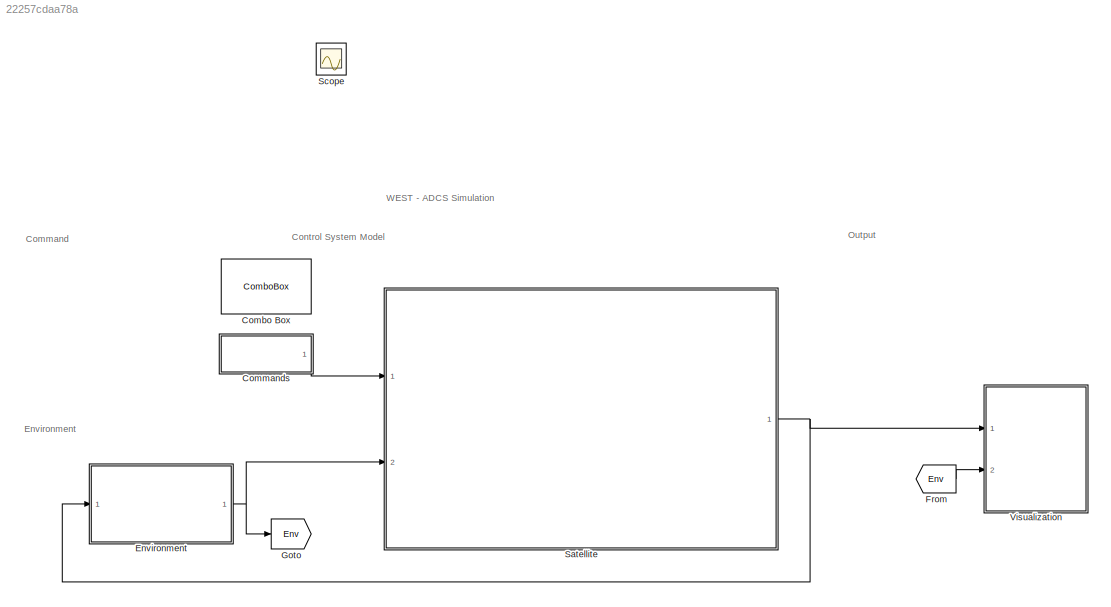
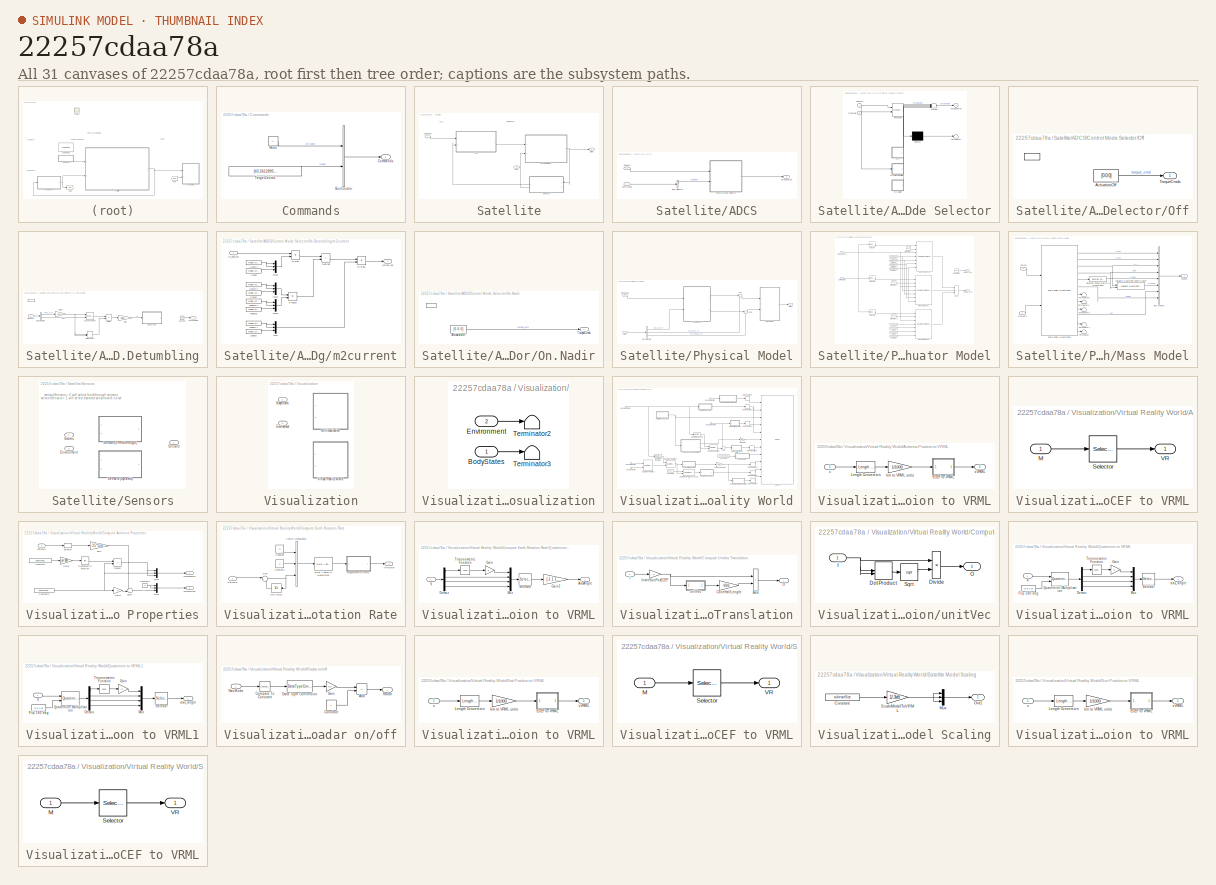
[diagram: thumbnail index - all 31 canvases of the model, root first then tree order]
MODEL slx_22257cdaa78a
KIND model
CONFIG AbsTol = auto
CONFIG EnableMultiTasking = off
CONFIG FixedStep = Ts
CONFIG MaxStep = auto
CONFIG MinStep = auto
CONFIG RelTol = 1e-3
CONFIG SampleTimeConstraint = Unconstrained
CONFIG SolverName = FixedStepAuto
CONFIG StartTime = 0.0
CONFIG StopTime = 86400
BLOCK [ComboBox] Combo Box
  LabelPosition = Bottom
  SelectedLabel = Detumble
BLOCK [SubSystem] Commands
  Ports = [0, 1]
  RequestExecContextInheritance = off
BLOCK [BusCreator] Commands/Bus Creator
  DisplayOption = bar
  InheritFromInputs = on
  Inputs = 2
  Ports = [2, 1]
BLOCK [Outport] Commands/Commands
BLOCK [Constant] Commands/Mode
BLOCK [Constant] Commands/TargetCoords
  Value = [43.26128951472562, -79.90916059630679, 115]
BLOCK [ModelReference] Environment
  ModelNameDialog = EnvironmentMDL.slx
  ModelReferenceVersion = 1.13
  Ports = [1, 1]
BLOCK [From] From
  GotoTag = Env
BLOCK [Goto] Goto
  GotoTag = Env
BLOCK [SubSystem] Satellite
  Ports = [2, 1]
  RequestExecContextInheritance = off
BLOCK [SubSystem] Satellite/ADCS
  Ports = [2, 1]
  RequestExecContextInheritance = off
BLOCK [BusSelector] Satellite/ADCS/Bus Selector
  OutputSignals = ctrlMode
  Ports = [1, 1]
BLOCK [Inport] Satellite/ADCS/Commands
BLOCK [SubSystem] Satellite/ADCS/Control Mode Selector
  ErrorFcn = Stateflow.Translate.translate
  PermitHierarchicalResolution = ExplicitOnly
  Ports = [2, 1]
  RequestExecContextInheritance = off
  SFBlockType = Chart
  TreatAsAtomicUnit = on
BLOCK [Demux] Satellite/ADCS/Control Mode Selector/ Demux 
  Outputs = 1
  Ports = [1, 1]
BLOCK [Merge] Satellite/ADCS/Control Mode Selector/ Merge 
  Inputs = 4
  Ports = [4, 1]
BLOCK [S-Function] Satellite/ADCS/Control Mode Selector/ SFunction 
  EnableBusSupport = on
  FunctionName = sf_sfun
  PortCounts = [2 2]
  Ports = [2, 2]
  SFcnIsStateOwnerBlock = off
  SFunctionDeploymentMode = off
  Tag = Stateflow S-Function 1
BLOCK [Terminator] Satellite/ADCS/Control Mode Selector/ Terminator 
BLOCK [SubSystem] Satellite/ADCS/Control Mode Selector/Off
  Ports = [0, 1, 0, 0, 0, 0, 0, 1]
  PreDeleteFcn = Stateflow.SLINSF.SimulinkMan.removePreDeleteFcn
  RequestExecContextInheritance = off
  UndoDeleteFcn = Stateflow.SLINSF.SimulinkMan.restorePreDeleteFcn
BLOCK [ActionPort] Satellite/ADCS/Control Mode Selector/Off/ 
  CopyFcn = Stateflow.SLINSF.SimulinkMan.removeBlockPreDeleteFcn
  PreDeleteFcn = Stateflow.SLINSF.SimulinkMan.unsafePredeleteFcn
BLOCK [Constant] Satellite/ADCS/Control Mode Selector/Off/ActuatorsOff
  Value = [0 0 0]
BLOCK [Outport] Satellite/ADCS/Control Mode Selector/Off/TorqueCmds
BLOCK [SubSystem] Satellite/ADCS/Control Mode Selector/On.Detumbling
  Ports = [1, 1, 0, 0, 0, 0, 0, 1]
  PreDeleteFcn = Stateflow.SLINSF.SimulinkMan.removePreDeleteFcn
  RequestExecContextInheritance = off
  UndoDeleteFcn = Stateflow.SLINSF.SimulinkMan.restorePreDeleteFcn
BLOCK [ActionPort] Satellite/ADCS/Control Mode Selector/On.Detumbling/ 
  CopyFcn = Stateflow.SLINSF.SimulinkMan.removeBlockPreDeleteFcn
  PreDeleteFcn = Stateflow.SLINSF.SimulinkMan.unsafePredeleteFcn
BLOCK [BusSelector] Satellite/ADCS/Control Mode Selector/On.Detumbling/Bus Selector
  OutputSignals = mag.mag_xyz,gyro.pqr
  Ports = [1, 2]
BLOCK [Reference] Satellite/ADCS/Control Mode Selector/On.Detumbling/Cross Product  REF=vrlib/Utilities/Cross Product
  Ports = [2, 1]
  SourceBlock = vrlib/Utilities/Cross Product
  SourceProductBaseCode = SL
  SourceType = Cross Product
BLOCK [Product] Satellite/ADCS/Control Mode Selector/On.Detumbling/Divide
  Inputs = */
  Ports = [2, 1]
BLOCK [DotProduct] Satellite/ADCS/Control Mode Selector/On.Detumbling/Dot Product
  OutDataTypeStr = Inherit: Inherit via internal rule
BLOCK [Gain] Satellite/ADCS/Control Mode Selector/On.Detumbling/Gain
  Gain = -gains.Kw
BLOCK [Gain] Satellite/ADCS/Control Mode Selector/On.Detumbling/Gain1
  Gain = 1e-9
BLOCK [Ground] Satellite/ADCS/Control Mode Selector/On.Detumbling/Ground
BLOCK [Inport] Satellite/ADCS/Control Mode Selector/On.Detumbling/Sensors
BLOCK [Outport] Satellite/ADCS/Control Mode Selector/On.Detumbling/TorqueCmds
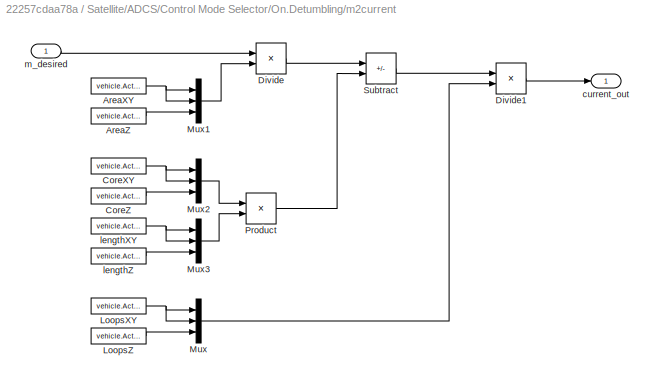
BLOCK [SubSystem] Satellite/ADCS/Control Mode Selector/On.Detumbling/m2current
  Ports = [1, 1]
  RequestExecContextInheritance = off
BLOCK [Constant] Satellite/ADCS/Control Mode Selector/On.Detumbling/m2current/AreaXY
  Value = vehicle.Actuators.Mag_XY.A
BLOCK [Constant] Satellite/ADCS/Control Mode Selector/On.Detumbling/m2current/AreaZ
  Value = vehicle.Actuators.Mag_Z.A
BLOCK [Constant] Satellite/ADCS/Control Mode Selector/On.Detumbling/m2current/CoreXY
  Value = vehicle.Actuators.Mag_XY.coreMagFactor
BLOCK [Constant] Satellite/ADCS/Control Mode Selector/On.Detumbling/m2current/CoreZ
  Value = vehicle.Actuators.Mag_Z.coreMagFactor
BLOCK [Product] Satellite/ADCS/Control Mode Selector/On.Detumbling/m2current/Divide
  Inputs = */
  Ports = [2, 1]
BLOCK [Product] Satellite/ADCS/Control Mode Selector/On.Detumbling/m2current/Divide1
  Inputs = */
  Ports = [2, 1]
BLOCK [Constant] Satellite/ADCS/Control Mode Selector/On.Detumbling/m2current/LoopsXY
  Value = vehicle.Actuators.Mag_XY.loops
BLOCK [Constant] Satellite/ADCS/Control Mode Selector/On.Detumbling/m2current/LoopsZ
  Value = vehicle.Actuators.Mag_Z.loops
BLOCK [Mux] Satellite/ADCS/Control Mode Selector/On.Detumbling/m2current/Mux
  DisplayOption = bar
  Inputs = 3
  Ports = [3, 1]
BLOCK [Mux] Satellite/ADCS/Control Mode Selector/On.Detumbling/m2current/Mux1
  DisplayOption = bar
  Inputs = 3
  Ports = [3, 1]
BLOCK [Mux] Satellite/ADCS/Control Mode Selector/On.Detumbling/m2current/Mux2
  DisplayOption = bar
  Inputs = 3
  Ports = [3, 1]
BLOCK [Mux] Satellite/ADCS/Control Mode Selector/On.Detumbling/m2current/Mux3
  DisplayOption = bar
  Inputs = 3
  Ports = [3, 1]
BLOCK [Product] Satellite/ADCS/Control Mode Selector/On.Detumbling/m2current/Product
  Ports = [2, 1]
BLOCK [Sum] Satellite/ADCS/Control Mode Selector/On.Detumbling/m2current/Subtract
  IconShape = rectangular
  Inputs = +-
  Ports = [2, 1]
BLOCK [Outport] Satellite/ADCS/Control Mode Selector/On.Detumbling/m2current/current_out
BLOCK [Constant] Satellite/ADCS/Control Mode Selector/On.Detumbling/m2current/lengthXY
  Value = vehicle.Actuators.Mag_XY.length
BLOCK [Constant] Satellite/ADCS/Control Mode Selector/On.Detumbling/m2current/lengthZ
  Value = vehicle.Actuators.Mag_Z.length
BLOCK [Inport] Satellite/ADCS/Control Mode Selector/On.Detumbling/m2current/m_desired
BLOCK [SubSystem] Satellite/ADCS/Control Mode Selector/On.Nadir
  Ports = [0, 1, 0, 0, 0, 0, 0, 1]
  PreDeleteFcn = Stateflow.SLINSF.SimulinkMan.removePreDeleteFcn
  RequestExecContextInheritance = off
  UndoDeleteFcn = Stateflow.SLINSF.SimulinkMan.restorePreDeleteFcn
BLOCK [ActionPort] Satellite/ADCS/Control Mode Selector/On.Nadir/ 
  CopyFcn = Stateflow.SLINSF.SimulinkMan.removeBlockPreDeleteFcn
  PreDeleteFcn = Stateflow.SLINSF.SimulinkMan.unsafePredeleteFcn
BLOCK [Constant] Satellite/ADCS/Control Mode Selector/On.Nadir/ActuatorsOff
  Value = [0 0 0]
BLOCK [Outport] Satellite/ADCS/Control Mode Selector/On.Nadir/TorqueCmds
  VectorParamsAs1DForOutWhenUnconnected = off
BLOCK [Inport] Satellite/ADCS/Control Mode Selector/Sensors
BLOCK [Outport] Satellite/ADCS/Control Mode Selector/TorqueCmds
  VectorParamsAs1DForOutWhenUnconnected = off
BLOCK [Inport] Satellite/ADCS/Control Mode Selector/ctrlMode
  Port = 2
BLOCK [Inport] Satellite/ADCS/Sensors
  Port = 2
BLOCK [Outport] Satellite/ADCS/TorqueCmds
BLOCK [Inport] Satellite/Commands
BLOCK [Inport] Satellite/Env
  Port = 2
BLOCK [SubSystem] Satellite/Physical Model
  Ports = [2, 1]
  RequestExecContextInheritance = off
BLOCK [SubSystem] Satellite/Physical Model/Actuator Model
  Ports = [2, 2]
  RequestExecContextInheritance = off
BLOCK [Inport] Satellite/Physical Model/Actuator Model/<mag_body>
  Port = 2
BLOCK [Sum] Satellite/Physical Model/Actuator Model/Add1
  IconShape = rectangular
  Inputs = +++
  Ports = [3, 1]
BLOCK [Constant] Satellite/Physical Model/Actuator Model/AreaXY
  Value = vehicle.Actuators.Mag_XY.A
BLOCK [Constant] Satellite/Physical Model/Actuator Model/AreaZ
  Value = vehicle.Actuators.Mag_Z.A
BLOCK [Constant] Satellite/Physical Model/Actuator Model/Constant
  Value = [0 0 0]
BLOCK [Constant] Satellite/Physical Model/Actuator Model/CoreXY
  Value = vehicle.Actuators.Mag_XY.coreMagFactor
BLOCK [Constant] Satellite/Physical Model/Actuator Model/CoreZ
  Value = vehicle.Actuators.Mag_Z.coreMagFactor
BLOCK [Outport] Satellite/Physical Model/Actuator Model/Force_XYZ
BLOCK [Constant] Satellite/Physical Model/Actuator Model/LoopsXY
  Value = vehicle.Actuators.Mag_XY.loops
BLOCK [Constant] Satellite/Physical Model/Actuator Model/LoopsZ
  Value = vehicle.Actuators.Mag_Z.loops
BLOCK [Reference] Satellite/Physical Model/Actuator Model/Magnetorquer_X  REF=IdealMagnetorquer/IdealMagnetorquer
  Ports = [7, 1]
  SourceBlock = IdealMagnetorquer/IdealMagnetorquer
  SourceType = SubSystem
BLOCK [Reference] Satellite/Physical Model/Actuator Model/Magnetorquer_Y  REF=IdealMagnetorquer/IdealMagnetorquer
  Ports = [7, 1]
  SourceBlock = IdealMagnetorquer/IdealMagnetorquer
  SourceType = SubSystem
BLOCK [Reference] Satellite/Physical Model/Actuator Model/Magnetorquer_Z  REF=IdealMagnetorquer/IdealMagnetorquer
  Ports = [7, 1]
  SourceBlock = IdealMagnetorquer/IdealMagnetorquer
  SourceType = SubSystem
BLOCK [Constant] Satellite/Physical Model/Actuator Model/Orientation_1
  Value = [1 0 0]
BLOCK [Constant] Satellite/Physical Model/Actuator Model/Orientation_2
  Value = [0 1 0]
BLOCK [Constant] Satellite/Physical Model/Actuator Model/Orientation_3
  Value = [0 0 1]
BLOCK [Selector] Satellite/Physical Model/Actuator Model/Selector
  IndexOptions = Index vector (dialog)
  Indices = [1]
  InputPortWidth = 3
  OutputSizes = 1
  Ports = [1, 1]
BLOCK [Selector] Satellite/Physical Model/Actuator Model/Selector1
  IndexOptions = Index vector (dialog)
  Indices = [2]
  InputPortWidth = 3
  OutputSizes = 1
  Ports = [1, 1]
BLOCK [Selector] Satellite/Physical Model/Actuator Model/Selector2
  IndexOptions = Index vector (dialog)
  Indices = [3]
  InputPortWidth = 3
  OutputSizes = 1
  Ports = [1, 1]
BLOCK [Outport] Satellite/Physical Model/Actuator Model/Torque_XYZ
  Port = 2
BLOCK [Inport] Satellite/Physical Model/Actuator Model/currentCmds
BLOCK [Constant] Satellite/Physical Model/Actuator Model/lengthXY
  Value = vehicle.Actuators.Mag_XY.length
BLOCK [Constant] Satellite/Physical Model/Actuator Model/lengthZ
  Value = vehicle.Actuators.Mag_Z.length
BLOCK [BusSelector] Satellite/Physical Model/Bus Selector1
  OutputSignals = mag_body,envForces_b,envTorques_b
  Ports = [1, 3]
BLOCK [Inport] Satellite/Physical Model/DipoleCmds
BLOCK [Inport] Satellite/Physical Model/Env
  OutDataTypeStr = Bus: Environment
  Port = 2
BLOCK [SubSystem] Satellite/Physical Model/Mass Model
  Ports = [2, 1]
  RequestExecContextInheritance = off
BLOCK [Reference] Satellite/Physical Model/Mass Model/6DOF ECEF (Quaternion)  REF=aerolib6dof2/6DOF ECEF (Quaternion)
  Ports = [2, 12]
  SourceBlock = aerolib6dof2/6DOF ECEF (Quaternion)
  SourceProductBaseCode = AE
  SourceType = 6DOF EoM (ECEF)
BLOCK [BusCreator] Satellite/Physical Model/Mass Model/Bus Creator
  DisplayOption = bar
  InheritFromInputs = off
  Inputs = 8
  OutDataTypeStr = Bus: States
  Ports = [8, 1]
BLOCK [Reference] Satellite/Physical Model/Mass Model/Calculate Quaternion ECEF to Body  REF=asbCubeSatBlockLib/Axes Transformations/Coordinate System Transformations/Calculate Quaternion
ECEF to Body
  Ports = [2, 1]
  SourceBlock = asbCubeSatBlockLib/Axes Transformations/Coordinate System Transformations/Calculate Quaternion\nECEF to Body
  SourceProductBaseCode = AERO_CUBESAT
BLOCK [Reference] Satellite/Physical Model/Mass Model/Direction Cosine Matrix to Quaternions  REF=sharedtransform/Direction Cosine Matrix 
to Quaternions
  Ports = [1, 1]
  SourceBlock = sharedtransform/Direction Cosine Matrix \nto Quaternions
  SourceProductBaseCode = AE,PW,MT,UV,VE,VP
  SourceType = DCM2Quaternion
BLOCK [Inport] Satellite/Physical Model/Mass Model/Forces
BLOCK [Inport] Satellite/Physical Model/Mass Model/Moments
  Port = 2
BLOCK [Outport] Satellite/Physical Model/Mass Model/States
  OutDataTypeStr = Bus: States
BLOCK [Terminator] Satellite/Physical Model/Mass Model/Terminator
BLOCK [Terminator] Satellite/Physical Model/Mass Model/Terminator1
BLOCK [Terminator] Satellite/Physical Model/Mass Model/Terminator3
BLOCK [Terminator] Satellite/Physical Model/Mass Model/Terminator4
BLOCK [Terminator] Satellite/Physical Model/Mass Model/Terminator5
BLOCK [Outport] Satellite/Physical Model/States
  OutDataTypeStr = Bus: States
BLOCK [Sum] Satellite/Physical Model/Sum
  Inputs = |++
  Ports = [2, 1]
BLOCK [Sum] Satellite/Physical Model/Sum1
  Inputs = |++
  Ports = [2, 1]
BLOCK [SubSystem] Satellite/Sensors
  PortSchema = {"entries":[{"content":{"sides":[{"content":{"connectorIds":["In1"]},"type":"ConnectorPlacement.EquallySpacedRectSide","uuid":"333b1ae7-5c9e-4a5c-9c25-ac72357b0d01"},{"content":{"connectorIds":["In2","Out1"],"side":"RIGHT"},"type":"ConnectorPlacement.EquallySpacedRectSide","uuid":"5bc5f7f5-cc56-407b-b2db-867815abac92"},{"content":{"connectorIds":[],"side":"TOP"},"type":"ConnectorPlacement.EquallyS...<+390ch>
  Ports = [2, 1]
  RequestExecContextInheritance = off
  Variant = on
BLOCK [Inport] Satellite/Sensors/Environment
  OutDataTypeStr = Bus: Environment
  Port = 2
BLOCK [Outport] Satellite/Sensors/Sensors
  OutDataTypeStr = Bus: Sensors
BLOCK [ModelReference] Satellite/Sensors/Sensors (Dynamic)
  ModelNameDialog = SensorMDL.slx
  ModelReferenceVersion = 1.2
  Ports = [2, 1]
  VariantControl = sensReal
BLOCK [ModelReference] Satellite/Sensors/Sensors (Feedthrough)
  ModelNameDialog = IdealSensors.slx
  ModelReferenceVersion = 1.2
  Ports = [2, 1]
  VariantControl = sensIdeal
BLOCK [Inport] Satellite/Sensors/States
  OutDataTypeStr = Bus: States
BLOCK [Outport] Satellite/States
  OutDataTypeStr = Bus: States
BLOCK [Scope] Scope
  Floating = off
  IOType = viewer
  NumInputPorts = 1
  Ports = []
  ScopeSpecificationString = Simulink.scopes.TimeScopeBlockCfg('CurrentConfiguration', extmgr.ConfigurationSet(extmgr.Configuration('Core','General UI',true),extmgr.Configuration('Core','Source UI',true),extmgr.Configuration('Sources','WiredSimulink',true),extmgr.Configuration('Visuals','Time Domain',true,'SerializedDisplays',{struct('MinYLimReal','-8482330864.35847','MaxYLimReal','8483915904.52001','YLabelReal','','MinYLimMa...<+1636ch>
BLOCK [SubSystem] Visualization
  Ports = [2]
  RequestExecContextInheritance = off
  Variant = on
BLOCK [Inport] Visualization/BodyStates
BLOCK [Inport] Visualization/Environment
  Port = 2
BLOCK [SubSystem] Visualization/No Visualization
  Ports = [2]
  RequestExecContextInheritance = off
  VariantControl = visOff
BLOCK [Inport] Visualization/No Visualization/BodyStates
BLOCK [Inport] Visualization/No Visualization/Environment
  Port = 2
BLOCK [Terminator] Visualization/No Visualization/Terminator2
BLOCK [Terminator] Visualization/No Visualization/Terminator3
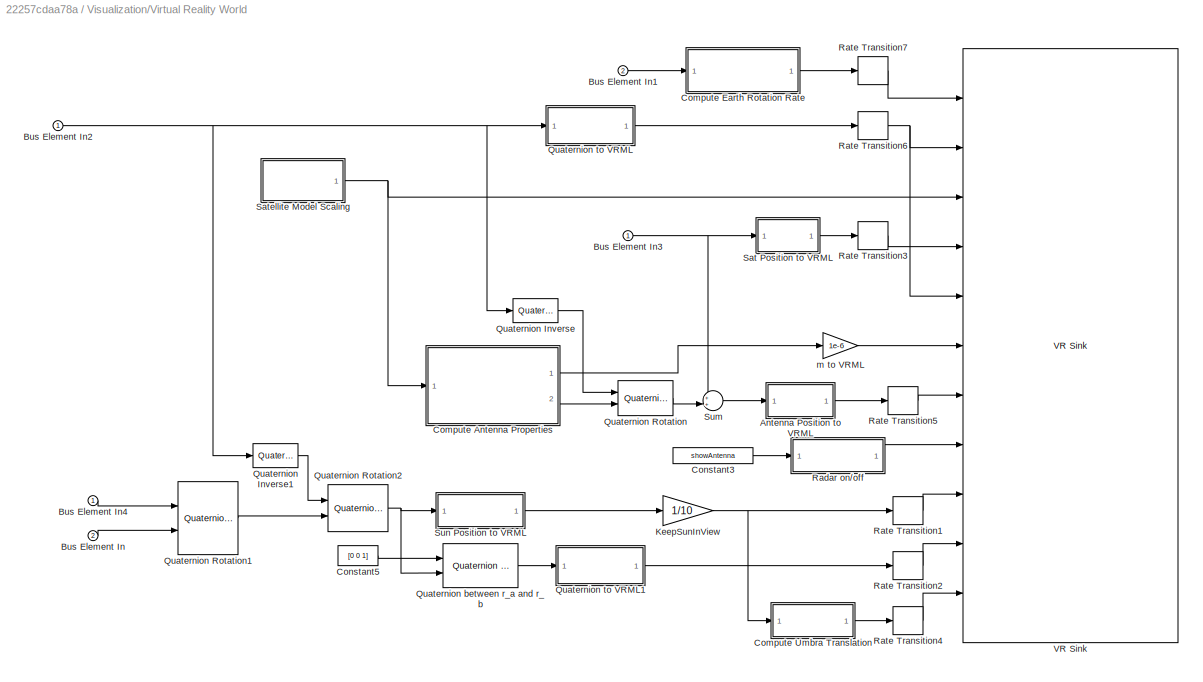
BLOCK [SubSystem] Visualization/Virtual Reality World
  Ports = [2]
  RequestExecContextInheritance = off
  VariantControl = visSL3D
BLOCK [SubSystem] Visualization/Virtual Reality World/Antenna Position to VRML
  Ports = [1, 1]
  RequestExecContextInheritance = off
BLOCK [SubSystem] Visualization/Virtual Reality World/Antenna Position to VRML/ECEF to VRML
  Ports = [1, 1]
  RequestExecContextInheritance = off
BLOCK [Inport] Visualization/Virtual Reality World/Antenna Position to VRML/ECEF to VRML/M
  PortDimensions = 3
BLOCK [Selector] Visualization/Virtual Reality World/Antenna Position to VRML/ECEF to VRML/Selector
  IndexOptions = Index vector (dialog)
  Indices = [2 3 1]
  InputPortWidth = 3
  OutputSizes = 1
  Ports = [1, 1]
BLOCK [Outport] Visualization/Virtual Reality World/Antenna Position to VRML/ECEF to VRML/VR
  PortDimensions = 3
  VectorParamsAs1DForOutWhenUnconnected = off
BLOCK [Reference] Visualization/Virtual Reality World/Antenna Position to VRML/Length Conversion  REF=aerolibconvert2/Length Conversion
  Ports = [1, 1]
  SourceBlock = aerolibconvert2/Length Conversion
  SourceProductName = Aerospace Blockset
  SourceType = Length Conversion
BLOCK [Gain] Visualization/Virtual Reality World/Antenna Position to VRML/km to VRML units
  Gain = 1/1000
BLOCK [Inport] Visualization/Virtual Reality World/Antenna Position to VRML/x
BLOCK [Outport] Visualization/Virtual Reality World/Antenna Position to VRML/xVRML
  VectorParamsAs1DForOutWhenUnconnected = off
BLOCK [Inport] Visualization/Virtual Reality World/Bus Element In
  Port = 2
BLOCK [Inport] Visualization/Virtual Reality World/Bus Element In1
  Port = 2
BLOCK [Inport] Visualization/Virtual Reality World/Bus Element In2
BLOCK [Inport] Visualization/Virtual Reality World/Bus Element In3
BLOCK [Inport] Visualization/Virtual Reality World/Bus Element In4
BLOCK [SubSystem] Visualization/Virtual Reality World/Compute Antenna Properties
  Ports = [1, 2]
  RequestExecContextInheritance = off
BLOCK [Outport] Visualization/Virtual Reality World/Compute Antenna Properties/AntennaScale
  VectorParamsAs1DForOutWhenUnconnected = off
BLOCK [Outport] Visualization/Virtual Reality World/Compute Antenna Properties/AntennaTrans
  Port = 2
  VectorParamsAs1DForOutWhenUnconnected = off
BLOCK [Constant] Visualization/Virtual Reality World/Compute Antenna Properties/Constant1
  Value = antennaHalfAngle
BLOCK [Constant] Visualization/Virtual Reality World/Compute Antenna Properties/Constant2
  Value = antennaHeight
BLOCK [Constant] Visualization/Virtual Reality World/Compute Antenna Properties/Constant4
  Value = 0
BLOCK [Gain] Visualization/Virtual Reality World/Compute Antenna Properties/Gain1
  Gain = .5
BLOCK [Gain] Visualization/Virtual Reality World/Compute Antenna Properties/Gain2
  Gain = pi/180
BLOCK [Mux] Visualization/Virtual Reality World/Compute Antenna Properties/Mux1
  DisplayOption = bar
  Inputs = 3
  Ports = [3, 1]
BLOCK [Mux] Visualization/Virtual Reality World/Compute Antenna Properties/Mux2
  DisplayOption = bar
  Inputs = 3
  Ports = [3, 1]
BLOCK [Product] Visualization/Virtual Reality World/Compute Antenna Properties/Product
  Ports = [2, 1]
BLOCK [Inport] Visualization/Virtual Reality World/Compute Antenna Properties/SatScale
BLOCK [Selector] Visualization/Virtual Reality World/Compute Antenna Properties/Selector
  IndexOptions = Index vector (dialog)
  Indices = 1
  InputPortWidth = 3
  OutputSizes = 1
  Ports = [1, 1]
BLOCK [Sum] Visualization/Virtual Reality World/Compute Antenna Properties/Sum1
  Inputs = ++|
  Ports = [2, 1]
BLOCK [Trigonometry] Visualization/Virtual Reality World/Compute Antenna Properties/Trigonometric Function
  Operator = tan
  Ports = [1, 1]
BLOCK [Gain] Visualization/Virtual Reality World/Compute Antenna Properties/gain
  Gain = .25*1e6
BLOCK [SubSystem] Visualization/Virtual Reality World/Compute Earth Rotation Rate
  Ports = [1, 1]
  RequestExecContextInheritance = off
BLOCK [Constant] Visualization/Virtual Reality World/Compute Earth Rotation Rate/Constant
  Value = 0
BLOCK [Constant] Visualization/Virtual Reality World/Compute Earth Rotation Rate/Constant1
  Value = 0
BLOCK [Inport] Visualization/Virtual Reality World/Compute Earth Rotation Rate/EarthRot
BLOCK [Reference] Visualization/Virtual Reality World/Compute Earth Rotation Rate/Euler Angles to Quaternions  REF=aerolibobsolete/Euler Angles to Quaternions
  Ports = [1, 1]
  SourceBlock = aerolibobsolete/Euler Angles to Quaternions
  SourceProductBaseCode = AE
  SourceType = Euler2Quaternion
BLOCK [SubSystem] Visualization/Virtual Reality World/Compute Earth Rotation Rate/Quaternion to VRML
  Ports = [1, 1]
  RequestExecContextInheritance = off
BLOCK [Outport] Visualization/Virtual Reality World/Compute Earth Rotation Rate/Quaternion to VRML/AxisAngle
  VectorParamsAs1DForOutWhenUnconnected = off
BLOCK [Demux] Visualization/Virtual Reality World/Compute Earth Rotation Rate/Quaternion to VRML/Demux
  Ports = [1, 4]
BLOCK [Gain] Visualization/Virtual Reality World/Compute Earth Rotation Rate/Quaternion to VRML/Gain
  Gain = 2
BLOCK [Gain] Visualization/Virtual Reality World/Compute Earth Rotation Rate/Quaternion to VRML/Gain3
  Gain = [-1 1 1 1]
BLOCK [Mux] Visualization/Virtual Reality World/Compute Earth Rotation Rate/Quaternion to VRML/Mux
  DisplayOption = bar
  Ports = [4, 1]
BLOCK [Selector] Visualization/Virtual Reality World/Compute Earth Rotation Rate/Quaternion to VRML/Selector
  IndexOptions = Index vector (dialog)
  Indices = [2 4 3 1]
  InputPortWidth = 4
  OutputSizes = 1
  Ports = [1, 1]
BLOCK [Trigonometry] Visualization/Virtual Reality World/Compute Earth Rotation Rate/Quaternion to VRML/Trigonometric Function
  Operator = acos
  Ports = [1, 1]
BLOCK [Inport] Visualization/Virtual Reality World/Compute Earth Rotation Rate/Quaternion to VRML/q
BLOCK [Sum] Visualization/Virtual Reality World/Compute Earth Rotation Rate/Sum
  Inputs = |++
  Ports = [2, 1]
BLOCK [UnitDelay] Visualization/Virtual Reality World/Compute Earth Rotation Rate/Unit Delay
  HasFrameUpgradeWarning = on
  SampleTime = -1
BLOCK [Outport] Visualization/Virtual Reality World/Compute Earth Rotation Rate/VRMLRot
  VectorParamsAs1DForOutWhenUnconnected = off
BLOCK [Concatenate] Visualization/Virtual Reality World/Compute Earth Rotation Rate/Vector Concatenate
  NumInputs = 3
  Ports = [3, 1]
BLOCK [SubSystem] Visualization/Virtual Reality World/Compute Umbra Translation
  Ports = [1, 1]
  RequestExecContextInheritance = off
BLOCK [Sum] Visualization/Virtual Reality World/Compute Umbra Translation/Add
  IconShape = rectangular
  Ports = [2, 1]
BLOCK [Gain] Visualization/Virtual Reality World/Compute Umbra Translation/ConeHalfLength
  Gain = 692
BLOCK [Inport] Visualization/Virtual Reality World/Compute Umbra Translation/I
BLOCK [Gain] Visualization/Virtual Reality World/Compute Umbra Translation/InvertSunPosECEF
  Gain = -1
BLOCK [Outport] Visualization/Virtual Reality World/Compute Umbra Translation/O
  VectorParamsAs1DForOutWhenUnconnected = off
BLOCK [SubSystem] Visualization/Virtual Reality World/Compute Umbra Translation/unitVec
  Ports = [1, 1]
  RequestExecContextInheritance = off
BLOCK [Product] Visualization/Virtual Reality World/Compute Umbra Translation/unitVec/Divide
  Inputs = */
  Ports = [2, 1]
BLOCK [DotProduct] Visualization/Virtual Reality World/Compute Umbra Translation/unitVec/Dot Product
  OutDataTypeStr = Inherit: Inherit via internal rule
BLOCK [Inport] Visualization/Virtual Reality World/Compute Umbra Translation/unitVec/I
BLOCK [Outport] Visualization/Virtual Reality World/Compute Umbra Translation/unitVec/O
  VectorParamsAs1DForOutWhenUnconnected = off
BLOCK [Sqrt] Visualization/Virtual Reality World/Compute Umbra Translation/unitVec/Sqrt
BLOCK [Constant] Visualization/Virtual Reality World/Constant3
  Value = showAntenna
BLOCK [Constant] Visualization/Virtual Reality World/Constant5
  Value = [0 0 1]
BLOCK [Gain] Visualization/Virtual Reality World/KeepSunInView
  Gain = 1/10
BLOCK [Reference] Visualization/Virtual Reality World/Quaternion Inverse  REF=aerolibutil/Quaternion
Inverse
  Ports = [1, 1]
  SourceBlock = aerolibutil/Quaternion\nInverse
  SourceProductName = Aerospace Blockset
  SourceType = Quaternion Inverse
BLOCK [Reference] Visualization/Virtual Reality World/Quaternion Inverse1  REF=aerolibutil/Quaternion
Inverse
  Ports = [1, 1]
  SourceBlock = aerolibutil/Quaternion\nInverse
  SourceProductName = Aerospace Blockset
  SourceType = Quaternion Inverse
BLOCK [Reference] Visualization/Virtual Reality World/Quaternion Rotation  REF=aerolibutil/Quaternion
Rotation
  Ports = [2, 1]
  SourceBlock = aerolibutil/Quaternion\nRotation
  SourceProductName = Aerospace Blockset
  SourceType = Quaternion Rotation
BLOCK [Reference] Visualization/Virtual Reality World/Quaternion Rotation1  REF=aerolibutil/Quaternion
Rotation
  Ports = [2, 1]
  SourceBlock = aerolibutil/Quaternion\nRotation
  SourceProductName = Aerospace Blockset
  SourceType = Quaternion Rotation
BLOCK [Reference] Visualization/Virtual Reality World/Quaternion Rotation2  REF=aerolibutil/Quaternion
Rotation
  Ports = [2, 1]
  SourceBlock = aerolibutil/Quaternion\nRotation
  SourceProductName = Aerospace Blockset
  SourceType = Quaternion Rotation
BLOCK [Reference] Visualization/Virtual Reality World/Quaternion between r_a and r_b  REF=aerolibattitudesys/Quaternion between
vectors
  Ports = [2, 1]
  SourceBlock = aerolibattitudesys/Quaternion between\nvectors
  SourceProductBaseCode = AERO_CUBESAT
  SourceType = Calculate quaternion between vectors
BLOCK [SubSystem] Visualization/Virtual Reality World/Quaternion to VRML
  Ports = [1, 1]
  RequestExecContextInheritance = off
BLOCK [Demux] Visualization/Virtual Reality World/Quaternion to VRML/Demux
  Ports = [1, 4]
BLOCK [Constant] Visualization/Virtual Reality World/Quaternion to VRML/Flip 180 deg
  Value = [0 0 1 0]
BLOCK [Gain] Visualization/Virtual Reality World/Quaternion to VRML/Gain
  Gain = 2
BLOCK [Mux] Visualization/Virtual Reality World/Quaternion to VRML/Mux
  DisplayOption = bar
  Ports = [4, 1]
BLOCK [Reference] Visualization/Virtual Reality World/Quaternion to VRML/Quaternion Multiplication  REF=aerolibutil/Quaternion
Multiplication
  Ports = [2, 1]
  SourceBlock = aerolibutil/Quaternion\nMultiplication
  SourceProductName = Aerospace Blockset
  SourceType = Quaternion Multiplication
BLOCK [Selector] Visualization/Virtual Reality World/Quaternion to VRML/Selector
  IndexOptions = Index vector (dialog)
  Indices = [3 4 2 1]
  InputPortWidth = 4
  OutputSizes = 1
  Ports = [1, 1]
BLOCK [Trigonometry] Visualization/Virtual Reality World/Quaternion to VRML/Trigonometric Function
  Operator = acos
  Ports = [1, 1]
BLOCK [Outport] Visualization/Virtual Reality World/Quaternion to VRML/axis_angle
  VectorParamsAs1DForOutWhenUnconnected = off
BLOCK [Inport] Visualization/Virtual Reality World/Quaternion to VRML/q
BLOCK [SubSystem] Visualization/Virtual Reality World/Quaternion to VRML1
  Ports = [1, 1]
  RequestExecContextInheritance = off
BLOCK [Demux] Visualization/Virtual Reality World/Quaternion to VRML1/Demux
  Ports = [1, 4]
BLOCK [Constant] Visualization/Virtual Reality World/Quaternion to VRML1/Flip 180 deg
  Value = [0 0 1 0]
BLOCK [Gain] Visualization/Virtual Reality World/Quaternion to VRML1/Gain
  Gain = 2
BLOCK [Mux] Visualization/Virtual Reality World/Quaternion to VRML1/Mux
  DisplayOption = bar
  Ports = [4, 1]
BLOCK [Reference] Visualization/Virtual Reality World/Quaternion to VRML1/Quaternion Multiplication  REF=aerolibutil/Quaternion
Multiplication
  Ports = [2, 1]
  SourceBlock = aerolibutil/Quaternion\nMultiplication
  SourceProductName = Aerospace Blockset
  SourceType = Quaternion Multiplication
BLOCK [Selector] Visualization/Virtual Reality World/Quaternion to VRML1/Selector
  IndexOptions = Index vector (dialog)
  Indices = [3 4 2 1]
  InputPortWidth = 4
  OutputSizes = 1
  Ports = [1, 1]
BLOCK [Trigonometry] Visualization/Virtual Reality World/Quaternion to VRML1/Trigonometric Function
  Operator = acos
  Ports = [1, 1]
BLOCK [Outport] Visualization/Virtual Reality World/Quaternion to VRML1/axis_angle
  VectorParamsAs1DForOutWhenUnconnected = off
BLOCK [Inport] Visualization/Virtual Reality World/Quaternion to VRML1/q
BLOCK [SubSystem] Visualization/Virtual Reality World/Radar on//off
  Ports = [1, 1]
  RequestExecContextInheritance = off
BLOCK [Sum] Visualization/Virtual Reality World/Radar on//off/Add
  IconShape = rectangular
  Inputs = -+
  Ports = [2, 1]
BLOCK [Reference] Visualization/Virtual Reality World/Radar on//off/Compare To Constant  REF=simulink/Logic and Bit
Operations/Compare
To Constant
  Ports = [1, 1]
  SourceBlock = simulink/Logic and Bit\nOperations/Compare\nTo Constant
  SourceProductBaseCode = SL
  SourceType = Compare To Constant
BLOCK [Constant] Visualization/Virtual Reality World/Radar on//off/Constant
BLOCK [DataTypeConversion] Visualization/Virtual Reality World/Radar on//off/Data Type Conversion
  OutDataTypeStr = double
  RndMeth = Floor
  SaturateOnIntegerOverflow = off
BLOCK [Gain] Visualization/Virtual Reality World/Radar on//off/Gain
  Gain = 0.6
BLOCK [Inport] Visualization/Virtual Reality World/Radar on//off/NavMode
BLOCK [Outport] Visualization/Virtual Reality World/Radar on//off/Radar
  VectorParamsAs1DForOutWhenUnconnected = off
BLOCK [RateTransition] Visualization/Virtual Reality World/Rate Transition1
BLOCK [RateTransition] Visualization/Virtual Reality World/Rate Transition2
BLOCK [RateTransition] Visualization/Virtual Reality World/Rate Transition3
BLOCK [RateTransition] Visualization/Virtual Reality World/Rate Transition4
BLOCK [RateTransition] Visualization/Virtual Reality World/Rate Transition5
BLOCK [RateTransition] Visualization/Virtual Reality World/Rate Transition6
BLOCK [RateTransition] Visualization/Virtual Reality World/Rate Transition7
BLOCK [SubSystem] Visualization/Virtual Reality World/Sat Position to VRML
  Ports = [1, 1]
  RequestExecContextInheritance = off
BLOCK [SubSystem] Visualization/Virtual Reality World/Sat Position to VRML/ECEF to VRML
  Ports = [1, 1]
  RequestExecContextInheritance = off
BLOCK [Inport] Visualization/Virtual Reality World/Sat Position to VRML/ECEF to VRML/M
  PortDimensions = 3
BLOCK [Selector] Visualization/Virtual Reality World/Sat Position to VRML/ECEF to VRML/Selector
  IndexOptions = Index vector (dialog)
  Indices = [2 3 1]
  InputPortWidth = 3
  OutputSizes = 1
  Ports = [1, 1]
BLOCK [Outport] Visualization/Virtual Reality World/Sat Position to VRML/ECEF to VRML/VR
  PortDimensions = 3
  VectorParamsAs1DForOutWhenUnconnected = off
BLOCK [Reference] Visualization/Virtual Reality World/Sat Position to VRML/Length Conversion  REF=aerolibconvert2/Length Conversion
  Ports = [1, 1]
  SourceBlock = aerolibconvert2/Length Conversion
  SourceProductName = Aerospace Blockset
  SourceType = Length Conversion
BLOCK [Gain] Visualization/Virtual Reality World/Sat Position to VRML/km to VRML units
  Gain = 1/1000
BLOCK [Inport] Visualization/Virtual Reality World/Sat Position to VRML/x
BLOCK [Outport] Visualization/Virtual Reality World/Sat Position to VRML/xVRML
  VectorParamsAs1DForOutWhenUnconnected = off
BLOCK [SubSystem] Visualization/Virtual Reality World/Satellite Model Scaling
  Ports = [0, 1]
  RequestExecContextInheritance = off
BLOCK [Constant] Visualization/Virtual Reality World/Satellite Model Scaling/Constant
  Value = cubesatSize
BLOCK [Mux] Visualization/Virtual Reality World/Satellite Model Scaling/Mux
  DisplayOption = bar
  Inputs = 3
  Ports = [3, 1]
BLOCK [Outport] Visualization/Virtual Reality World/Satellite Model Scaling/Out1
  VectorParamsAs1DForOutWhenUnconnected = off
BLOCK [Gain] Visualization/Virtual Reality World/Satellite Model Scaling/ScaleModelToVRML
  Gain = 1/.3e6
BLOCK [Sum] Visualization/Virtual Reality World/Sum
  Inputs = ++|
  Ports = [2, 1]
BLOCK [SubSystem] Visualization/Virtual Reality World/Sun Position to VRML
  Ports = [1, 1]
  RequestExecContextInheritance = off
BLOCK [SubSystem] Visualization/Virtual Reality World/Sun Position to VRML/ECEF to VRML
  Ports = [1, 1]
  RequestExecContextInheritance = off
BLOCK [Inport] Visualization/Virtual Reality World/Sun Position to VRML/ECEF to VRML/M
  PortDimensions = 3
BLOCK [Selector] Visualization/Virtual Reality World/Sun Position to VRML/ECEF to VRML/Selector
  IndexOptions = Index vector (dialog)
  Indices = [2 3 1]
  InputPortWidth = 3
  OutputSizes = 1
  Ports = [1, 1]
BLOCK [Outport] Visualization/Virtual Reality World/Sun Position to VRML/ECEF to VRML/VR
  PortDimensions = 3
  VectorParamsAs1DForOutWhenUnconnected = off
BLOCK [Reference] Visualization/Virtual Reality World/Sun Position to VRML/Length Conversion  REF=aerolibconvert2/Length Conversion
  Ports = [1, 1]
  SourceBlock = aerolibconvert2/Length Conversion
  SourceProductName = Aerospace Blockset
  SourceType = Length Conversion
BLOCK [Gain] Visualization/Virtual Reality World/Sun Position to VRML/km to VRML units
  Gain = 1/1000
BLOCK [Inport] Visualization/Virtual Reality World/Sun Position to VRML/x
BLOCK [Outport] Visualization/Virtual Reality World/Sun Position to VRML/xVRML
  VectorParamsAs1DForOutWhenUnconnected = off
BLOCK [Reference] Visualization/Virtual Reality World/VR Sink  REF=vrlib/VR Sink
  InstantiateOnLoad = on
  Ports = [11]
  SourceBlock = vrlib/VR Sink
  SourceProductBaseCode = SL
  SourceType = Virtual Reality Sink
BLOCK [Gain] Visualization/Virtual Reality World/m to VRML
  Gain = 1e-6
ANNOTATION (root): WEST - ADCS Simulation
ANNOTATION (root): Command
ANNOTATION (root): Control System Model
ANNOTATION (root): Environment
ANNOTATION (root): Output
ANNOTATION Satellite: ADCS
ANNOTATION Satellite: Satellite Model
ANNOTATION Satellite/Sensors: variantSensors = 0 will select feedthrough sensors variantSensors = 1 will select dynamic sensors with noise
LINE Commands/Bus Creator:1 -> Commands/Commands:1
LINE Commands/Mode:1 -> Commands/Bus Creator:1
LINE Commands/TargetCoords:1 -> Commands/Bus Creator:2
LINE Commands:1 -> Satellite:1
NET Environment:1 -> Goto:1, Satellite:2
LINE From:1 -> Visualization:2
LINE Satellite/ADCS/Bus Selector:1 -> Satellite/ADCS/Control Mode Selector:2
LINE Satellite/ADCS/Commands:1 -> Satellite/ADCS/Bus Selector:1
LINE Satellite/ADCS/Control Mode Selector:1 -> Satellite/ADCS/TorqueCmds:1
LINE Satellite/ADCS/Sensors:1 -> Satellite/ADCS/Control Mode Selector:1
LINE Satellite/ADCS:1 -> Satellite/Physical Model:1
LINE Satellite/Commands:1 -> Satellite/ADCS:1
NET Satellite/Env:1 -> Satellite/Physical Model:2, Satellite/Sensors:2
NET Satellite/Physical Model/Actuator Model/<mag_body>:1 -> Satellite/Physical Model/Actuator Model/Magnetorquer_X:3, Satellite/Physical Model/Actuator Model/Magnetorquer_Y:3, Satellite/Physical Model/Actuator Model/Magnetorquer_Z:3
LINE Satellite/Physical Model/Actuator Model/Add1:1 -> Satellite/Physical Model/Actuator Model/Torque_XYZ:1
NET Satellite/Physical Model/Actuator Model/AreaXY:1 -> Satellite/Physical Model/Actuator Model/Magnetorquer_X:5, Satellite/Physical Model/Actuator Model/Magnetorquer_Y:5
LINE Satellite/Physical Model/Actuator Model/AreaZ:1 -> Satellite/Physical Model/Actuator Model/Magnetorquer_Z:5
LINE Satellite/Physical Model/Actuator Model/Constant:1 -> Satellite/Physical Model/Actuator Model/Force_XYZ:1
NET Satellite/Physical Model/Actuator Model/CoreXY:1 -> Satellite/Physical Model/Actuator Model/Magnetorquer_X:6, Satellite/Physical Model/Actuator Model/Magnetorquer_Y:6
LINE Satellite/Physical Model/Actuator Model/CoreZ:1 -> Satellite/Physical Model/Actuator Model/Magnetorquer_Z:6
NET Satellite/Physical Model/Actuator Model/LoopsXY:1 -> Satellite/Physical Model/Actuator Model/Magnetorquer_X:4, Satellite/Physical Model/Actuator Model/Magnetorquer_Y:4
LINE Satellite/Physical Model/Actuator Model/LoopsZ:1 -> Satellite/Physical Model/Actuator Model/Magnetorquer_Z:4
LINE Satellite/Physical Model/Actuator Model/Magnetorquer_X:1 -> Satellite/Physical Model/Actuator Model/Add1:1
LINE Satellite/Physical Model/Actuator Model/Magnetorquer_Y:1 -> Satellite/Physical Model/Actuator Model/Add1:2
LINE Satellite/Physical Model/Actuator Model/Magnetorquer_Z:1 -> Satellite/Physical Model/Actuator Model/Add1:3
LINE Satellite/Physical Model/Actuator Model/Orientation_1:1 -> Satellite/Physical Model/Actuator Model/Magnetorquer_X:2
LINE Satellite/Physical Model/Actuator Model/Orientation_2:1 -> Satellite/Physical Model/Actuator Model/Magnetorquer_Y:2
LINE Satellite/Physical Model/Actuator Model/Orientation_3:1 -> Satellite/Physical Model/Actuator Model/Magnetorquer_Z:2
LINE Satellite/Physical Model/Actuator Model/Selector1:1 -> Satellite/Physical Model/Actuator Model/Magnetorquer_Y:1
LINE Satellite/Physical Model/Actuator Model/Selector2:1 -> Satellite/Physical Model/Actuator Model/Magnetorquer_Z:1
LINE Satellite/Physical Model/Actuator Model/Selector:1 -> Satellite/Physical Model/Actuator Model/Magnetorquer_X:1
NET Satellite/Physical Model/Actuator Model/currentCmds:1 -> Satellite/Physical Model/Actuator Model/Selector1:1, Satellite/Physical Model/Actuator Model/Selector2:1, Satellite/Physical Model/Actuator Model/Selector:1
NET Satellite/Physical Model/Actuator Model/lengthXY:1 -> Satellite/Physical Model/Actuator Model/Magnetorquer_X:7, Satellite/Physical Model/Actuator Model/Magnetorquer_Y:7
LINE Satellite/Physical Model/Actuator Model/lengthZ:1 -> Satellite/Physical Model/Actuator Model/Magnetorquer_Z:7
LINE Satellite/Physical Model/Actuator Model:1 -> Satellite/Physical Model/Sum:1
LINE Satellite/Physical Model/Actuator Model:2 -> Satellite/Physical Model/Sum1:1
LINE Satellite/Physical Model/Bus Selector1:1 -> Satellite/Physical Model/Actuator Model:2
LINE Satellite/Physical Model/Bus Selector1:2 -> Satellite/Physical Model/Sum:2
LINE Satellite/Physical Model/Bus Selector1:3 -> Satellite/Physical Model/Sum1:2
LINE Satellite/Physical Model/DipoleCmds:1 -> Satellite/Physical Model/Actuator Model:1
LINE Satellite/Physical Model/Env:1 -> Satellite/Physical Model/Bus Selector1:1
LINE Satellite/Physical Model/Mass Model/6DOF ECEF (Quaternion):1 -> Satellite/Physical Model/Mass Model/Bus Creator:1
LINE Satellite/Physical Model/Mass Model/6DOF ECEF (Quaternion):10 -> Satellite/Physical Model/Mass Model/Bus Creator:7
LINE Satellite/Physical Model/Mass Model/6DOF ECEF (Quaternion):11 -> Satellite/Physical Model/Mass Model/Terminator1:1
LINE Satellite/Physical Model/Mass Model/6DOF ECEF (Quaternion):12 -> Satellite/Physical Model/Mass Model/Terminator:1
LINE Satellite/Physical Model/Mass Model/6DOF ECEF (Quaternion):2 -> Satellite/Physical Model/Mass Model/Bus Creator:2
NET Satellite/Physical Model/Mass Model/6DOF ECEF (Quaternion):3 -> Satellite/Physical Model/Mass Model/Bus Creator:3, Satellite/Physical Model/Mass Model/Calculate Quaternion ECEF to Body:1
NET Satellite/Physical Model/Mass Model/6DOF ECEF (Quaternion):4 -> Satellite/Physical Model/Mass Model/Bus Creator:4, Satellite/Physical Model/Mass Model/Calculate Quaternion ECEF to Body:2
LINE Satellite/Physical Model/Mass Model/6DOF ECEF (Quaternion):5 -> Satellite/Physical Model/Mass Model/Direction Cosine Matrix to Quaternions:1
LINE Satellite/Physical Model/Mass Model/6DOF ECEF (Quaternion):6 -> Satellite/Physical Model/Mass Model/Bus Creator:8
LINE Satellite/Physical Model/Mass Model/6DOF ECEF (Quaternion):7 -> Satellite/Physical Model/Mass Model/Terminator5:1
LINE Satellite/Physical Model/Mass Model/6DOF ECEF (Quaternion):8 -> Satellite/Physical Model/Mass Model/Terminator4:1
LINE Satellite/Physical Model/Mass Model/6DOF ECEF (Quaternion):9 -> Satellite/Physical Model/Mass Model/Terminator3:1
LINE Satellite/Physical Model/Mass Model/Bus Creator:1 -> Satellite/Physical Model/Mass Model/States:1
LINE Satellite/Physical Model/Mass Model/Calculate Quaternion ECEF to Body:1 -> Satellite/Physical Model/Mass Model/Bus Creator:6
LINE Satellite/Physical Model/Mass Model/Direction Cosine Matrix to Quaternions:1 -> Satellite/Physical Model/Mass Model/Bus Creator:5
LINE Satellite/Physical Model/Mass Model/Forces:1 -> Satellite/Physical Model/Mass Model/6DOF ECEF (Quaternion):1
LINE Satellite/Physical Model/Mass Model/Moments:1 -> Satellite/Physical Model/Mass Model/6DOF ECEF (Quaternion):2
LINE Satellite/Physical Model/Mass Model:1 -> Satellite/Physical Model/States:1
LINE Satellite/Physical Model/Sum1:1 -> Satellite/Physical Model/Mass Model:2
LINE Satellite/Physical Model/Sum:1 -> Satellite/Physical Model/Mass Model:1
NET Satellite/Physical Model:1 -> Satellite/Sensors:1, Satellite/States:1
LINE Satellite/Sensors:1 -> Satellite/ADCS:2
NET Satellite:1 -> Environment:1, Visualization:1
LINE Visualization/No Visualization/BodyStates:1 -> Visualization/No Visualization/Terminator3:1
LINE Visualization/No Visualization/Environment:1 -> Visualization/No Visualization/Terminator2:1
LINE Visualization/Virtual Reality World/Antenna Position to VRML/ECEF to VRML/M:1 -> Visualization/Virtual Reality World/Antenna Position to VRML/ECEF to VRML/Selector:1
LINE Visualization/Virtual Reality World/Antenna Position to VRML/ECEF to VRML/Selector:1 -> Visualization/Virtual Reality World/Antenna Position to VRML/ECEF to VRML/VR:1
LINE Visualization/Virtual Reality World/Antenna Position to VRML/ECEF to VRML:1 -> Visualization/Virtual Reality World/Antenna Position to VRML/xVRML:1
LINE Visualization/Virtual Reality World/Antenna Position to VRML/Length Conversion:1 -> Visualization/Virtual Reality World/Antenna Position to VRML/km to VRML units:1
LINE Visualization/Virtual Reality World/Antenna Position to VRML/km to VRML units:1 -> Visualization/Virtual Reality World/Antenna Position to VRML/ECEF to VRML:1
LINE Visualization/Virtual Reality World/Antenna Position to VRML/x:1 -> Visualization/Virtual Reality World/Antenna Position to VRML/Length Conversion:1
LINE Visualization/Virtual Reality World/Antenna Position to VRML:1 -> Visualization/Virtual Reality World/Rate Transition5:1
LINE Visualization/Virtual Reality World/Bus Element In1:1 -> Visualization/Virtual Reality World/Compute Earth Rotation Rate:1
NET Visualization/Virtual Reality World/Bus Element In2:1 -> Visualization/Virtual Reality World/Quaternion Inverse1:1, Visualization/Virtual Reality World/Quaternion Inverse:1, Visualization/Virtual Reality World/Quaternion to VRML:1
NET Visualization/Virtual Reality World/Bus Element In3:1 -> Visualization/Virtual Reality World/Sat Position to VRML:1, Visualization/Virtual Reality World/Sum:1
LINE Visualization/Virtual Reality World/Bus Element In4:1 -> Visualization/Virtual Reality World/Quaternion Rotation1:1
LINE Visualization/Virtual Reality World/Bus Element In:1 -> Visualization/Virtual Reality World/Quaternion Rotation1:2
LINE Visualization/Virtual Reality World/Compute Antenna Properties/Constant1:1 -> Visualization/Virtual Reality World/Compute Antenna Properties/Gain2:1
NET Visualization/Virtual Reality World/Compute Antenna Properties/Constant2:1 -> Visualization/Virtual Reality World/Compute Antenna Properties/Gain1:1, Visualization/Virtual Reality World/Compute Antenna Properties/Mux1:2, Visualization/Virtual Reality World/Compute Antenna Properties/Product:2
NET Visualization/Virtual Reality World/Compute Antenna Properties/Constant4:1 -> Visualization/Virtual Reality World/Compute Antenna Properties/Mux2:1, Visualization/Virtual Reality World/Compute Antenna Properties/Mux2:2
LINE Visualization/Virtual Reality World/Compute Antenna Properties/Gain1:1 -> Visualization/Virtual Reality World/Compute Antenna Properties/Sum1:2
LINE Visualization/Virtual Reality World/Compute Antenna Properties/Gain2:1 -> Visualization/Virtual Reality World/Compute Antenna Properties/Trigonometric Function:1
LINE Visualization/Virtual Reality World/Compute Antenna Properties/Mux1:1 -> Visualization/Virtual Reality World/Compute Antenna Properties/AntennaScale:1
LINE Visualization/Virtual Reality World/Compute Antenna Properties/Mux2:1 -> Visualization/Virtual Reality World/Compute Antenna Properties/AntennaTrans:1
NET Visualization/Virtual Reality World/Compute Antenna Properties/Product:1 -> Visualization/Virtual Reality World/Compute Antenna Properties/Mux1:1, Visualization/Virtual Reality World/Compute Antenna Properties/Mux1:3
LINE Visualization/Virtual Reality World/Compute Antenna Properties/SatScale:1 -> Visualization/Virtual Reality World/Compute Antenna Properties/Selector:1
LINE Visualization/Virtual Reality World/Compute Antenna Properties/Selector:1 -> Visualization/Virtual Reality World/Compute Antenna Properties/gain:1
LINE Visualization/Virtual Reality World/Compute Antenna Properties/Sum1:1 -> Visualization/Virtual Reality World/Compute Antenna Properties/Mux2:3
LINE Visualization/Virtual Reality World/Compute Antenna Properties/Trigonometric Function:1 -> Visualization/Virtual Reality World/Compute Antenna Properties/Product:1
LINE Visualization/Virtual Reality World/Compute Antenna Properties/gain:1 -> Visualization/Virtual Reality World/Compute Antenna Properties/Sum1:1
LINE Visualization/Virtual Reality World/Compute Antenna Properties:1 -> Visualization/Virtual Reality World/m to VRML:1
LINE Visualization/Virtual Reality World/Compute Antenna Properties:2 -> Visualization/Virtual Reality World/Quaternion Rotation:2
LINE Visualization/Virtual Reality World/Compute Earth Rotation Rate/Constant1:1 -> Visualization/Virtual Reality World/Compute Earth Rotation Rate/Vector Concatenate:2
LINE Visualization/Virtual Reality World/Compute Earth Rotation Rate/Constant:1 -> Visualization/Virtual Reality World/Compute Earth Rotation Rate/Vector Concatenate:1
LINE Visualization/Virtual Reality World/Compute Earth Rotation Rate/EarthRot:1 -> Visualization/Virtual Reality World/Compute Earth Rotation Rate/Sum:1
LINE Visualization/Virtual Reality World/Compute Earth Rotation Rate/Euler Angles to Quaternions:1 -> Visualization/Virtual Reality World/Compute Earth Rotation Rate/Quaternion to VRML:1
LINE Visualization/Virtual Reality World/Compute Earth Rotation Rate/Quaternion to VRML/Demux:1 -> Visualization/Virtual Reality World/Compute Earth Rotation Rate/Quaternion to VRML/Trigonometric Function:1
LINE Visualization/Virtual Reality World/Compute Earth Rotation Rate/Quaternion to VRML/Demux:2 -> Visualization/Virtual Reality World/Compute Earth Rotation Rate/Quaternion to VRML/Mux:2
LINE Visualization/Virtual Reality World/Compute Earth Rotation Rate/Quaternion to VRML/Demux:3 -> Visualization/Virtual Reality World/Compute Earth Rotation Rate/Quaternion to VRML/Mux:3
LINE Visualization/Virtual Reality World/Compute Earth Rotation Rate/Quaternion to VRML/Demux:4 -> Visualization/Virtual Reality World/Compute Earth Rotation Rate/Quaternion to VRML/Mux:4
LINE Visualization/Virtual Reality World/Compute Earth Rotation Rate/Quaternion to VRML/Gain3:1 -> Visualization/Virtual Reality World/Compute Earth Rotation Rate/Quaternion to VRML/AxisAngle:1
LINE Visualization/Virtual Reality World/Compute Earth Rotation Rate/Quaternion to VRML/Gain:1 -> Visualization/Virtual Reality World/Compute Earth Rotation Rate/Quaternion to VRML/Mux:1
LINE Visualization/Virtual Reality World/Compute Earth Rotation Rate/Quaternion to VRML/Mux:1 -> Visualization/Virtual Reality World/Compute Earth Rotation Rate/Quaternion to VRML/Selector:1
LINE Visualization/Virtual Reality World/Compute Earth Rotation Rate/Quaternion to VRML/Selector:1 -> Visualization/Virtual Reality World/Compute Earth Rotation Rate/Quaternion to VRML/Gain3:1
LINE Visualization/Virtual Reality World/Compute Earth Rotation Rate/Quaternion to VRML/Trigonometric Function:1 -> Visualization/Virtual Reality World/Compute Earth Rotation Rate/Quaternion to VRML/Gain:1
LINE Visualization/Virtual Reality World/Compute Earth Rotation Rate/Quaternion to VRML/q:1 -> Visualization/Virtual Reality World/Compute Earth Rotation Rate/Quaternion to VRML/Demux:1
LINE Visualization/Virtual Reality World/Compute Earth Rotation Rate/Quaternion to VRML:1 -> Visualization/Virtual Reality World/Compute Earth Rotation Rate/VRMLRot:1
NET Visualization/Virtual Reality World/Compute Earth Rotation Rate/Sum:1 -> Visualization/Virtual Reality World/Compute Earth Rotation Rate/Unit Delay:1, Visualization/Virtual Reality World/Compute Earth Rotation Rate/Vector Concatenate:3
LINE Visualization/Virtual Reality World/Compute Earth Rotation Rate/Unit Delay:1 -> Visualization/Virtual Reality World/Compute Earth Rotation Rate/Sum:2
LINE Visualization/Virtual Reality World/Compute Earth Rotation Rate/Vector Concatenate:1 -> Visualization/Virtual Reality World/Compute Earth Rotation Rate/Euler Angles to Quaternions:1
LINE Visualization/Virtual Reality World/Compute Earth Rotation Rate:1 -> Visualization/Virtual Reality World/Rate Transition7:1
LINE Visualization/Virtual Reality World/Compute Umbra Translation/Add:1 -> Visualization/Virtual Reality World/Compute Umbra Translation/O:1
LINE Visualization/Virtual Reality World/Compute Umbra Translation/ConeHalfLength:1 -> Visualization/Virtual Reality World/Compute Umbra Translation/Add:2
LINE Visualization/Virtual Reality World/Compute Umbra Translation/I:1 -> Visualization/Virtual Reality World/Compute Umbra Translation/InvertSunPosECEF:1
NET Visualization/Virtual Reality World/Compute Umbra Translation/InvertSunPosECEF:1 -> Visualization/Virtual Reality World/Compute Umbra Translation/Add:1, Visualization/Virtual Reality World/Compute Umbra Translation/unitVec:1
LINE Visualization/Virtual Reality World/Compute Umbra Translation/unitVec/Divide:1 -> Visualization/Virtual Reality World/Compute Umbra Translation/unitVec/O:1
LINE Visualization/Virtual Reality World/Compute Umbra Translation/unitVec/Dot Product:1 -> Visualization/Virtual Reality World/Compute Umbra Translation/unitVec/Sqrt:1
NET Visualization/Virtual Reality World/Compute Umbra Translation/unitVec/I:1 -> Visualization/Virtual Reality World/Compute Umbra Translation/unitVec/Divide:1, Visualization/Virtual Reality World/Compute Umbra Translation/unitVec/Dot Product:1, Visualization/Virtual Reality World/Compute Umbra Translation/unitVec/Dot Product:2
LINE Visualization/Virtual Reality World/Compute Umbra Translation/unitVec/Sqrt:1 -> Visualization/Virtual Reality World/Compute Umbra Translation/unitVec/Divide:2
LINE Visualization/Virtual Reality World/Compute Umbra Translation/unitVec:1 -> Visualization/Virtual Reality World/Compute Umbra Translation/ConeHalfLength:1
LINE Visualization/Virtual Reality World/Compute Umbra Translation:1 -> Visualization/Virtual Reality World/Rate Transition4:1
LINE Visualization/Virtual Reality World/Constant3:1 -> Visualization/Virtual Reality World/Radar on//off:1
LINE Visualization/Virtual Reality World/Constant5:1 -> Visualization/Virtual Reality World/Quaternion between r_a and r_b:1
NET Visualization/Virtual Reality World/KeepSunInView:1 -> Visualization/Virtual Reality World/Compute Umbra Translation:1, Visualization/Virtual Reality World/Rate Transition1:1
LINE Visualization/Virtual Reality World/Quaternion Inverse1:1 -> Visualization/Virtual Reality World/Quaternion Rotation2:1
LINE Visualization/Virtual Reality World/Quaternion Inverse:1 -> Visualization/Virtual Reality World/Quaternion Rotation:1
LINE Visualization/Virtual Reality World/Quaternion Rotation1:1 -> Visualization/Virtual Reality World/Quaternion Rotation2:2
NET Visualization/Virtual Reality World/Quaternion Rotation2:1 -> Visualization/Virtual Reality World/Quaternion between r_a and r_b:2, Visualization/Virtual Reality World/Sun Position to VRML:1
LINE Visualization/Virtual Reality World/Quaternion Rotation:1 -> Visualization/Virtual Reality World/Sum:2
LINE Visualization/Virtual Reality World/Quaternion between r_a and r_b:1 -> Visualization/Virtual Reality World/Quaternion to VRML1:1
LINE Visualization/Virtual Reality World/Quaternion to VRML/Demux:1 -> Visualization/Virtual Reality World/Quaternion to VRML/Trigonometric Function:1
LINE Visualization/Virtual Reality World/Quaternion to VRML/Demux:2 -> Visualization/Virtual Reality World/Quaternion to VRML/Mux:2
LINE Visualization/Virtual Reality World/Quaternion to VRML/Demux:3 -> Visualization/Virtual Reality World/Quaternion to VRML/Mux:3
LINE Visualization/Virtual Reality World/Quaternion to VRML/Demux:4 -> Visualization/Virtual Reality World/Quaternion to VRML/Mux:4
LINE Visualization/Virtual Reality World/Quaternion to VRML/Flip 180 deg:1 -> Visualization/Virtual Reality World/Quaternion to VRML/Quaternion Multiplication:2
LINE Visualization/Virtual Reality World/Quaternion to VRML/Gain:1 -> Visualization/Virtual Reality World/Quaternion to VRML/Mux:1
LINE Visualization/Virtual Reality World/Quaternion to VRML/Mux:1 -> Visualization/Virtual Reality World/Quaternion to VRML/Selector:1
LINE Visualization/Virtual Reality World/Quaternion to VRML/Quaternion Multiplication:1 -> Visualization/Virtual Reality World/Quaternion to VRML/Demux:1
LINE Visualization/Virtual Reality World/Quaternion to VRML/Selector:1 -> Visualization/Virtual Reality World/Quaternion to VRML/axis_angle:1
LINE Visualization/Virtual Reality World/Quaternion to VRML/Trigonometric Function:1 -> Visualization/Virtual Reality World/Quaternion to VRML/Gain:1
LINE Visualization/Virtual Reality World/Quaternion to VRML/q:1 -> Visualization/Virtual Reality World/Quaternion to VRML/Quaternion Multiplication:1
LINE Visualization/Virtual Reality World/Quaternion to VRML1/Demux:1 -> Visualization/Virtual Reality World/Quaternion to VRML1/Trigonometric Function:1
LINE Visualization/Virtual Reality World/Quaternion to VRML1/Demux:2 -> Visualization/Virtual Reality World/Quaternion to VRML1/Mux:2
LINE Visualization/Virtual Reality World/Quaternion to VRML1/Demux:3 -> Visualization/Virtual Reality World/Quaternion to VRML1/Mux:3
LINE Visualization/Virtual Reality World/Quaternion to VRML1/Demux:4 -> Visualization/Virtual Reality World/Quaternion to VRML1/Mux:4
LINE Visualization/Virtual Reality World/Quaternion to VRML1/Flip 180 deg:1 -> Visualization/Virtual Reality World/Quaternion to VRML1/Quaternion Multiplication:2
LINE Visualization/Virtual Reality World/Quaternion to VRML1/Gain:1 -> Visualization/Virtual Reality World/Quaternion to VRML1/Mux:1
LINE Visualization/Virtual Reality World/Quaternion to VRML1/Mux:1 -> Visualization/Virtual Reality World/Quaternion to VRML1/Selector:1
LINE Visualization/Virtual Reality World/Quaternion to VRML1/Quaternion Multiplication:1 -> Visualization/Virtual Reality World/Quaternion to VRML1/Demux:1
LINE Visualization/Virtual Reality World/Quaternion to VRML1/Selector:1 -> Visualization/Virtual Reality World/Quaternion to VRML1/axis_angle:1
LINE Visualization/Virtual Reality World/Quaternion to VRML1/Trigonometric Function:1 -> Visualization/Virtual Reality World/Quaternion to VRML1/Gain:1
LINE Visualization/Virtual Reality World/Quaternion to VRML1/q:1 -> Visualization/Virtual Reality World/Quaternion to VRML1/Quaternion Multiplication:1
LINE Visualization/Virtual Reality World/Quaternion to VRML1:1 -> Visualization/Virtual Reality World/Rate Transition2:1
LINE Visualization/Virtual Reality World/Quaternion to VRML:1 -> Visualization/Virtual Reality World/Rate Transition6:1
LINE Visualization/Virtual Reality World/Radar on//off/Add:1 -> Visualization/Virtual Reality World/Radar on//off/Radar:1
LINE Visualization/Virtual Reality World/Radar on//off/Compare To Constant:1 -> Visualization/Virtual Reality World/Radar on//off/Data Type Conversion:1
LINE Visualization/Virtual Reality World/Radar on//off/Constant:1 -> Visualization/Virtual Reality World/Radar on//off/Add:2
LINE Visualization/Virtual Reality World/Radar on//off/Data Type Conversion:1 -> Visualization/Virtual Reality World/Radar on//off/Gain:1
LINE Visualization/Virtual Reality World/Radar on//off/Gain:1 -> Visualization/Virtual Reality World/Radar on//off/Add:1
LINE Visualization/Virtual Reality World/Radar on//off/NavMode:1 -> Visualization/Virtual Reality World/Radar on//off/Compare To Constant:1
LINE Visualization/Virtual Reality World/Radar on//off:1 -> Visualization/Virtual Reality World/VR Sink:8
LINE Visualization/Virtual Reality World/Rate Transition1:1 -> Visualization/Virtual Reality World/VR Sink:9
LINE Visualization/Virtual Reality World/Rate Transition2:1 -> Visualization/Virtual Reality World/VR Sink:10
LINE Visualization/Virtual Reality World/Rate Transition3:1 -> Visualization/Virtual Reality World/VR Sink:4
LINE Visualization/Virtual Reality World/Rate Transition4:1 -> Visualization/Virtual Reality World/VR Sink:11
LINE Visualization/Virtual Reality World/Rate Transition5:1 -> Visualization/Virtual Reality World/VR Sink:7
NET Visualization/Virtual Reality World/Rate Transition6:1 -> Visualization/Virtual Reality World/VR Sink:2, Visualization/Virtual Reality World/VR Sink:5
LINE Visualization/Virtual Reality World/Rate Transition7:1 -> Visualization/Virtual Reality World/VR Sink:1
LINE Visualization/Virtual Reality World/Sat Position to VRML/ECEF to VRML/M:1 -> Visualization/Virtual Reality World/Sat Position to VRML/ECEF to VRML/Selector:1
LINE Visualization/Virtual Reality World/Sat Position to VRML/ECEF to VRML/Selector:1 -> Visualization/Virtual Reality World/Sat Position to VRML/ECEF to VRML/VR:1
LINE Visualization/Virtual Reality World/Sat Position to VRML/ECEF to VRML:1 -> Visualization/Virtual Reality World/Sat Position to VRML/xVRML:1
LINE Visualization/Virtual Reality World/Sat Position to VRML/Length Conversion:1 -> Visualization/Virtual Reality World/Sat Position to VRML/km to VRML units:1
LINE Visualization/Virtual Reality World/Sat Position to VRML/km to VRML units:1 -> Visualization/Virtual Reality World/Sat Position to VRML/ECEF to VRML:1
LINE Visualization/Virtual Reality World/Sat Position to VRML/x:1 -> Visualization/Virtual Reality World/Sat Position to VRML/Length Conversion:1
LINE Visualization/Virtual Reality World/Sat Position to VRML:1 -> Visualization/Virtual Reality World/Rate Transition3:1
LINE Visualization/Virtual Reality World/Satellite Model Scaling/Constant:1 -> Visualization/Virtual Reality World/Satellite Model Scaling/ScaleModelToVRML:1
LINE Visualization/Virtual Reality World/Satellite Model Scaling/Mux:1 -> Visualization/Virtual Reality World/Satellite Model Scaling/Out1:1
NET Visualization/Virtual Reality World/Satellite Model Scaling/ScaleModelToVRML:1 -> Visualization/Virtual Reality World/Satellite Model Scaling/Mux:1, Visualization/Virtual Reality World/Satellite Model Scaling/Mux:2, Visualization/Virtual Reality World/Satellite Model Scaling/Mux:3
NET Visualization/Virtual Reality World/Satellite Model Scaling:1 -> Visualization/Virtual Reality World/Compute Antenna Properties:1, Visualization/Virtual Reality World/VR Sink:3
LINE Visualization/Virtual Reality World/Sum:1 -> Visualization/Virtual Reality World/Antenna Position to VRML:1
LINE Visualization/Virtual Reality World/Sun Position to VRML/ECEF to VRML/M:1 -> Visualization/Virtual Reality World/Sun Position to VRML/ECEF to VRML/Selector:1
LINE Visualization/Virtual Reality World/Sun Position to VRML/ECEF to VRML/Selector:1 -> Visualization/Virtual Reality World/Sun Position to VRML/ECEF to VRML/VR:1
LINE Visualization/Virtual Reality World/Sun Position to VRML/ECEF to VRML:1 -> Visualization/Virtual Reality World/Sun Position to VRML/xVRML:1
LINE Visualization/Virtual Reality World/Sun Position to VRML/Length Conversion:1 -> Visualization/Virtual Reality World/Sun Position to VRML/km to VRML units:1
LINE Visualization/Virtual Reality World/Sun Position to VRML/km to VRML units:1 -> Visualization/Virtual Reality World/Sun Position to VRML/ECEF to VRML:1
LINE Visualization/Virtual Reality World/Sun Position to VRML/x:1 -> Visualization/Virtual Reality World/Sun Position to VRML/Length Conversion:1
LINE Visualization/Virtual Reality World/Sun Position to VRML:1 -> Visualization/Virtual Reality World/KeepSunInView:1
LINE Visualization/Virtual Reality World/m to VRML:1 -> Visualization/Virtual Reality World/VR Sink:6
note: NET lines group one-source signal fan-out (src -> all destinations, sorted); 1:1 wires keep LINE
CHART Satellite/ADCS/Control Mode Selector states=5 transitions=8
  STATE_LABEL 'On'
  STATE_LABEL 'Transition'
  STATE_LABEL 'Nadir'
  STATE_LABEL 'Detumbling'
  STATE_LABEL '[ctrlMode == 1]'
  STATE_LABEL '[ctrlMode ~= 1]'
  STATE_LABEL '[ctrlMode == 2]'
  STATE_LABEL '[ctrlMode ~= 2]'
  STATE_LABEL 'Transition'
  STATE_LABEL 'Nadir'
  STATE_LABEL 'Detumbling'
  STATE_LABEL 'Off'
CHART  states=0 transitions=0
